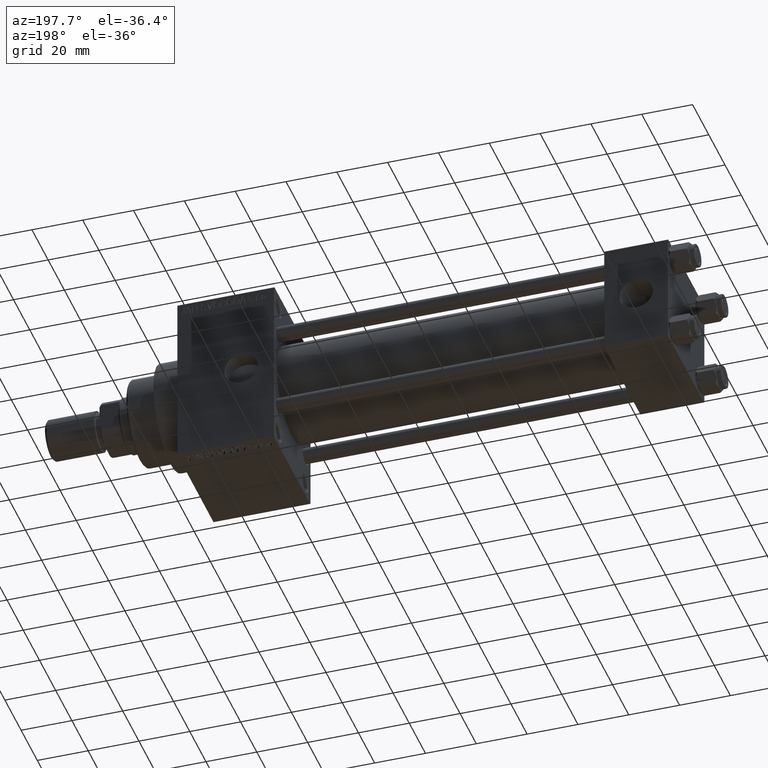
[diagram: clean part render]
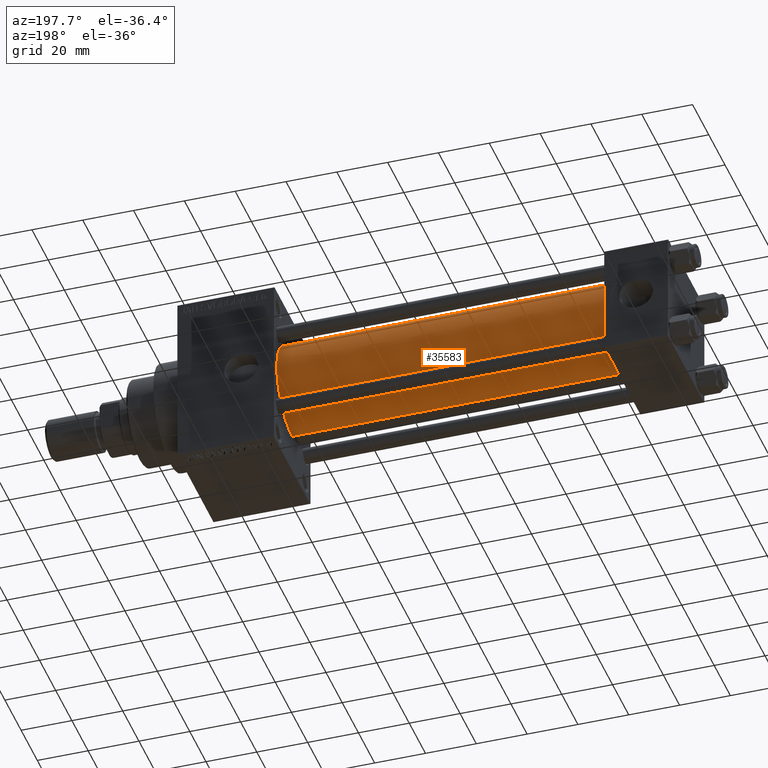
[diagram: same view with one face highlighted and labeled with its STEP entity id]
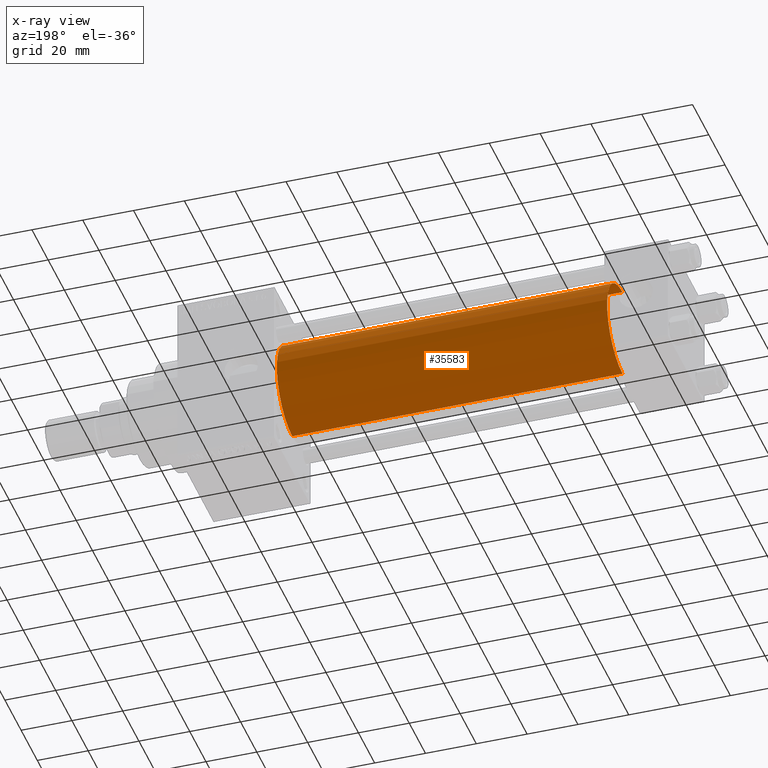
[diagram: x-ray of the same camera — body ghosted, the highlighted face saturated]
A machine part, auxiliary view. The second image highlights one B-rep face of the part: STEP entity #35583.
The next image is the same camera in x-ray: the body ghosted, the highlighted face saturated — about 0% of this face is hidden behind the body in this view.
In plain terms, the highlighted cylindrical surface (partial cylindrical patch) has radius 19 mm, axis along (-1, -0, -0).
Its self-contained STEP definition (entity closure, byte-faithful):
#2265 = CIRCLE ( 'NONE', #31022, 19.00000000000000000 ) ;
#2498 = EDGE_CURVE ( 'NONE', #11011, #27536, #19787, .T. ) ;
#2888 = EDGE_CURVE ( 'NONE', #24690, #20618, #2265, .T. ) ;
#3031 = DIRECTION ( 'NONE',  ( -1.000000000000000000, -0.000000000000000000, -0.000000000000000000 ) ) ;
#3161 = DIRECTION ( 'NONE',  ( 1.000000000000000000, -0.000000000000000000, 0.000000000000000000 ) ) ;
#5806 = DIRECTION ( 'NONE',  ( -1.000000000000000000, -0.000000000000000000, -0.000000000000000000 ) ) ;
#6039 = LINE ( 'NONE', #10049, #40960 ) ;
#7900 = ORIENTED_EDGE ( 'NONE', *, *, #23837, .F. ) ;
#10049 = CARTESIAN_POINT ( 'NONE',  ( 155.0000000000000000, -2.752562955852396712E-16, -19.00000000000000000 ) ) ;
#10907 = DIRECTION ( 'NONE',  ( 1.000000000000000000, 0.000000000000000000, 0.000000000000000000 ) ) ;
#11011 = VERTEX_POINT ( 'NONE', #26801 ) ;
#14211 = ORIENTED_EDGE ( 'NONE', *, *, #15349, .T. ) ;
#15349 = EDGE_CURVE ( 'NONE', #24690, #11011, #6039, .T. ) ;
#18098 = CARTESIAN_POINT ( 'NONE',  ( 155.0000000000000000, -2.602085213965210642E-15, 19.00000000000000000 ) ) ;
#19787 = CIRCLE ( 'NONE', #30213, 19.00000000000000000 ) ;
#20618 = VERTEX_POINT ( 'NONE', #35151 ) ;
#21091 = DIRECTION ( 'NONE',  ( 0.000000000000000000, 0.000000000000000000, 1.000000000000000000 ) ) ;
#21379 = DIRECTION ( 'NONE',  ( 0.000000000000000000, 0.000000000000000000, 1.000000000000000000 ) ) ;
#21941 = DIRECTION ( 'NONE',  ( 0.000000000000000000, 0.000000000000000000, -1.000000000000000000 ) ) ;
#22200 = CARTESIAN_POINT ( 'NONE',  ( 24.99999999999999289, -2.602085213965210642E-15, 0.000000000000000000 ) ) ;
#22432 = CARTESIAN_POINT ( 'NONE',  ( 155.0000000000000000, -2.602085213965210642E-15, 0.000000000000000000 ) ) ;
#23837 = EDGE_CURVE ( 'NONE', #20618, #27536, #26600, .T. ) ;
#24584 = VECTOR ( 'NONE', #48676, 1000.000000000000000 ) ;
#24690 = VERTEX_POINT ( 'NONE', #31146 ) ;
#24847 = FACE_OUTER_BOUND ( 'NONE', #39976, .T. ) ;
#25096 = CYLINDRICAL_SURFACE ( 'NONE', #25669, 19.00000000000000000 ) ;
#25669 = AXIS2_PLACEMENT_3D ( 'NONE', #40139, #5806, #21091 ) ;
#25870 = ORIENTED_EDGE ( 'NONE', *, *, #2888, .F. ) ;
#26600 = LINE ( 'NONE', #18098, #24584 ) ;
#26801 = CARTESIAN_POINT ( 'NONE',  ( 24.99999999999999289, -2.752562955852396712E-16, -19.00000000000000000 ) ) ;
#27536 = VERTEX_POINT ( 'NONE', #47602 ) ;
#30213 = AXIS2_PLACEMENT_3D ( 'NONE', #22200, #3161, #21379 ) ;
#31022 = AXIS2_PLACEMENT_3D ( 'NONE', #22432, #10907, #21941 ) ;
#31146 = CARTESIAN_POINT ( 'NONE',  ( 155.0000000000000000, -2.752562955852396712E-16, -19.00000000000000000 ) ) ;
#35151 = CARTESIAN_POINT ( 'NONE',  ( 155.0000000000000000, -2.602085213965210642E-15, 19.00000000000000000 ) ) ;
#35583 = ADVANCED_FACE ( 'NONE', ( #24847 ), #25096, .T. ) ;
#39976 = EDGE_LOOP ( 'NONE', ( #25870, #14211, #47835, #7900 ) ) ;
#40139 = CARTESIAN_POINT ( 'NONE',  ( 155.0000000000000000, -2.602085213965210642E-15, 0.000000000000000000 ) ) ;
#40960 = VECTOR ( 'NONE', #3031, 1000.000000000000000 ) ;
#47602 = CARTESIAN_POINT ( 'NONE',  ( 24.99999999999999289, -2.602085213965210642E-15, 19.00000000000000000 ) ) ;
#47835 = ORIENTED_EDGE ( 'NONE', *, *, #2498, .T. ) ;
#48676 = DIRECTION ( 'NONE',  ( -1.000000000000000000, -0.000000000000000000, -0.000000000000000000 ) ) ;